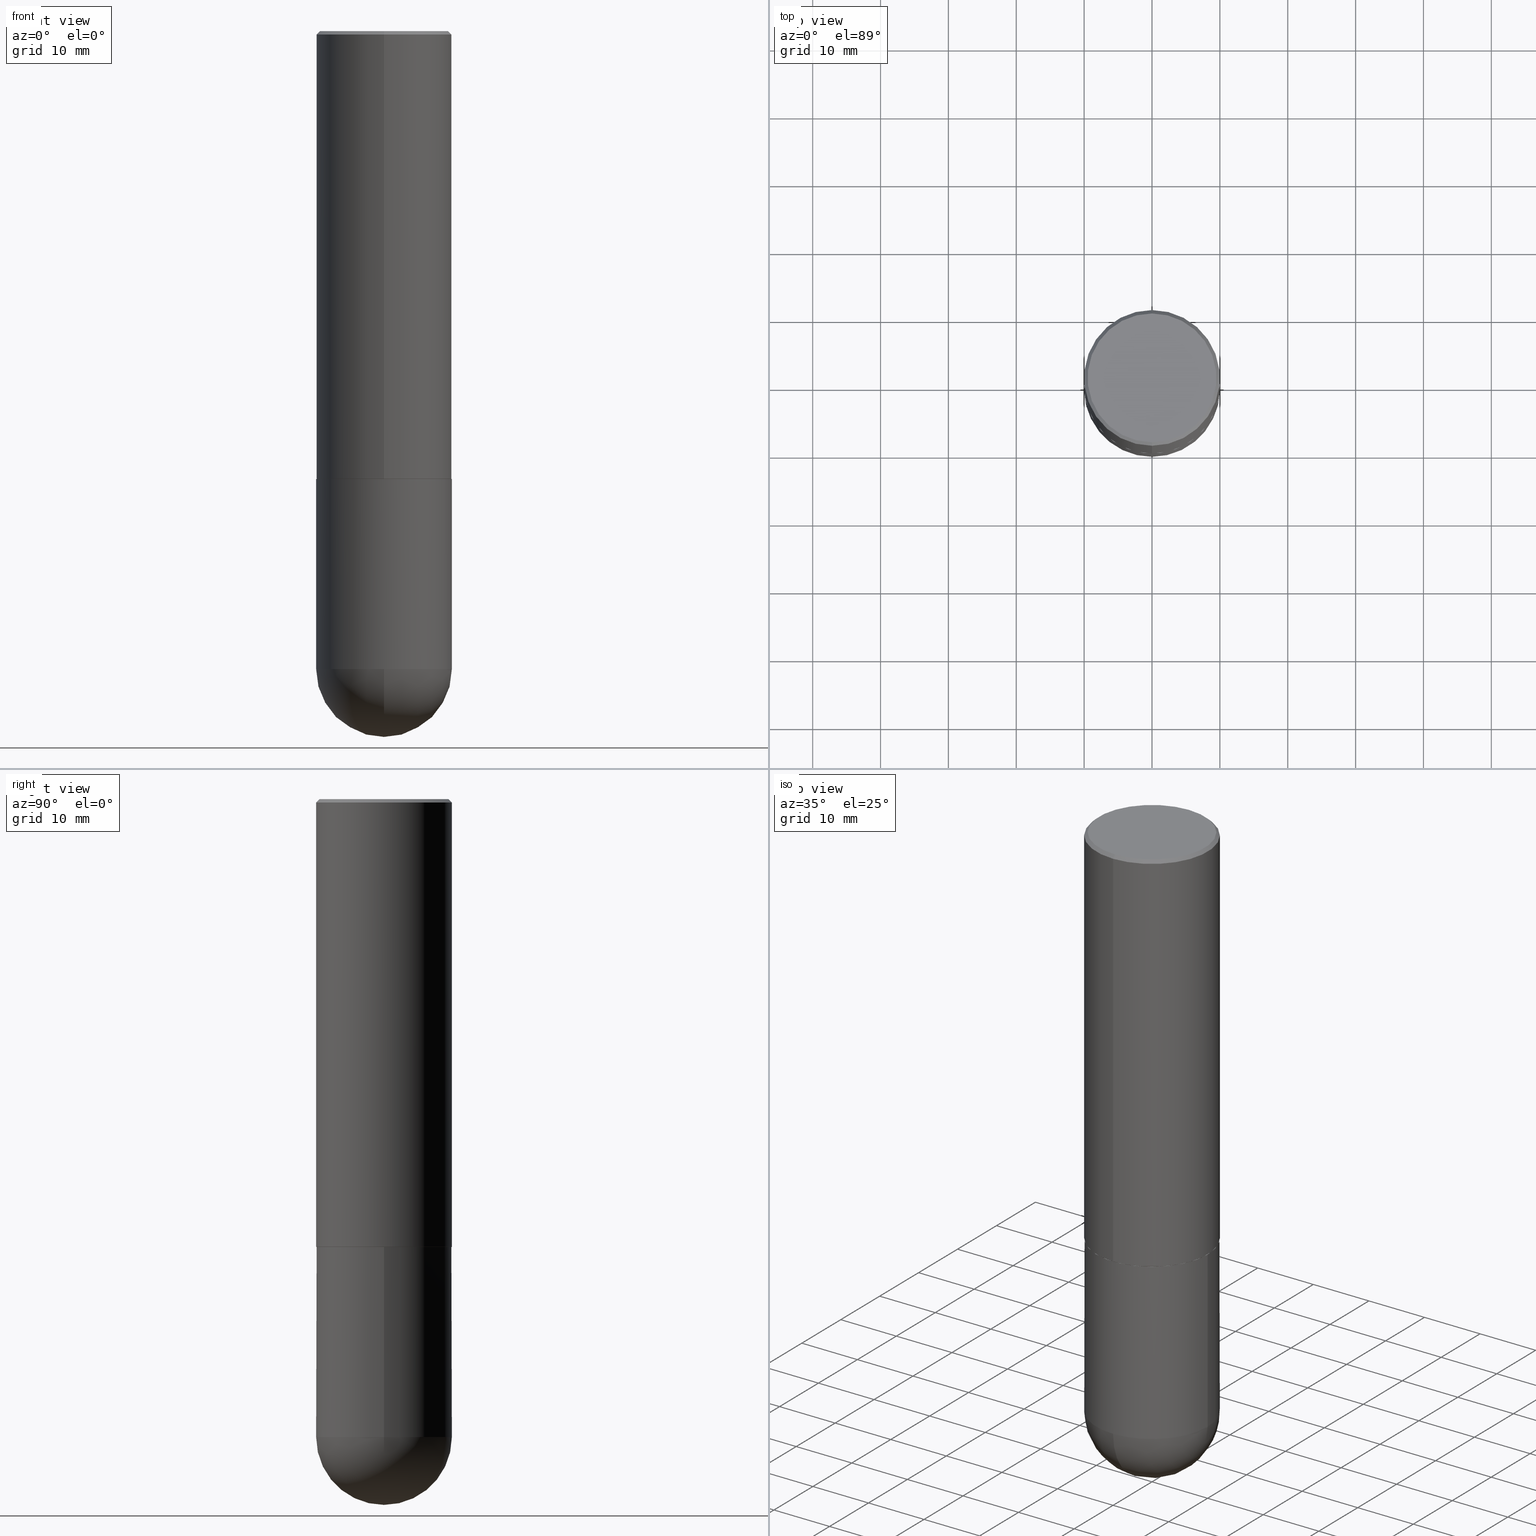
[diagram: canonical four-view strip — front | top / right | iso, engineering-drawing reading convention]
A machine part, canonical four-view strip (front | top / right | iso — engineering-drawing reading convention). The complete STEP part file that produces these views, byte-faithful:
ISO-10303-21;
HEADER;
FILE_DESCRIPTION (( 'STEP AP203' ),
    '1' );
FILE_NAME ('46350.STEP',
    '2024-04-10T11:50:10',
    ( '' ),
    ( '' ),
    'SwSTEP 2.0',
    'SolidWorks 2023',
    '' );
FILE_SCHEMA (( 'CONFIG_CONTROL_DESIGN' ));
ENDSEC;

DATA;
#1 = FACE_OUTER_BOUND ( 'NONE', #329, .T. ) ;
#2 = CC_DESIGN_APPROVAL ( #303, ( #387 ) ) ;
#3 = ORIENTED_EDGE ( 'NONE', *, *, #97, .T. ) ;
#4 = VERTEX_POINT ( 'NONE', #135 ) ;
#5 = VECTOR ( 'NONE', #363, 39.37007874015748143 ) ;
#6 = LOCAL_TIME ( 7, 50, 10.00000000000000000, #369 ) ;
#7 = ORIENTED_EDGE ( 'NONE', *, *, #140, .T. ) ;
#8 = CIRCLE ( 'NONE', #309, 0.3937000000000002720 ) ;
#9 = ORIENTED_EDGE ( 'NONE', *, *, #88, .F. ) ;
#10 = CC_DESIGN_PERSON_AND_ORGANIZATION_ASSIGNMENT ( #379, #401, ( #387 ) ) ;
#11 = EDGE_CURVE ( 'NONE', #100, #323, #43, .T. ) ;
#12 = ORIENTED_EDGE ( 'NONE', *, *, #84, .F. ) ;
#13 = ADVANCED_FACE ( 'NONE', ( #235 ), #195, .T. ) ;
#14 = ORIENTED_EDGE ( 'NONE', *, *, #219, .F. ) ;
#15 = FACE_OUTER_BOUND ( 'NONE', #408, .T. ) ;
#16 = ADVANCED_BREP_SHAPE_REPRESENTATION ( '46350', ( #374, #238, #103 ), #249 ) ;
#17 = CARTESIAN_POINT ( 'NONE',  ( 6.349752936603663586E-29, -9.071792033989200442E-15, -2.597400000000000375 ) ) ;
#18 = CARTESIAN_POINT ( 'NONE',  ( 6.349752936603663586E-29, -9.071792033989200442E-15, -2.597400000000000375 ) ) ;
#19 = SECURITY_CLASSIFICATION_LEVEL ( 'unclassified' ) ;
#20 = AXIS2_PLACEMENT_3D ( 'NONE', #345, #279, #116 ) ;
#21 = FACE_OUTER_BOUND ( 'NONE', #78, .T. ) ;
#22 = CALENDAR_DATE ( 2024, 10, 4 ) ;
#23 = DIRECTION ( 'NONE',  ( 6.982962677686265133E-15, 1.000000000000000000, 0.000000000000000000 ) ) ;
#24 = EDGE_CURVE ( 'NONE', #331, #100, #137, .T. ) ;
#25 = CARTESIAN_POINT ( 'NONE',  ( -2.797406750687426828E-15, -0.3937000000000133171, -3.700799999999998313 ) ) ;
#26 = APPROVAL_DATE_TIME ( #318, #233 ) ;
#27 = DIRECTION ( 'NONE',  ( 1.000000000000000000, -6.982962677686267499E-15, 0.000000000000000000 ) ) ;
#28 = APPLICATION_CONTEXT ( 'configuration controlled 3d designs of mechanical parts and assemblies' ) ;
#29 = VERTEX_POINT ( 'NONE', #403 ) ;
#30 = PERSON_AND_ORGANIZATION ( #257, #289 ) ;
#31 = CONICAL_SURFACE ( 'NONE', #273, 0.3937000000000000499, 0.7853981633974463916 ) ;
#32 = CARTESIAN_POINT ( 'NONE',  ( -2.749192406205021291E-15, -0.3937000000000093758, -2.597399999999999043 ) ) ;
#33 = SECURITY_CLASSIFICATION ( '', '', #19 ) ;
#34 = ORIENTED_EDGE ( 'NONE', *, *, #284, .F. ) ;
#35 = APPROVAL_STATUS ( 'not_yet_approved' ) ;
#36 = DIRECTION ( 'NONE',  ( -2.445468806185136597E-29, 3.491481338843145583E-15, 1.000000000000000000 ) ) ;
#37 = CYLINDRICAL_SURFACE ( 'NONE', #364, 0.3937000000000001054 ) ;
#38 = DIRECTION ( 'NONE',  ( 6.982962677686265922E-15, 1.000000000000000000, -4.163344669033671690E-15 ) ) ;
#39 = VERTEX_POINT ( 'NONE', #333 ) ;
#40 = AXIS2_PLACEMENT_3D ( 'NONE', #64, #36, #283 ) ;
#41 = LOCAL_TIME ( 7, 50, 10.00000000000000000, #184 ) ;
#42 = EDGE_CURVE ( 'NONE', #297, #44, #118, .T. ) ;
#43 = LINE ( 'NONE', #167, #229 ) ;
#44 = VERTEX_POINT ( 'NONE', #332 ) ;
#45 = AXIS2_PLACEMENT_3D ( 'NONE', #304, #209, #170 ) ;
#46 = EDGE_LOOP ( 'NONE', ( #131, #119, #291, #164 ) ) ;
#47 = ORIENTED_EDGE ( 'NONE', *, *, #88, .T. ) ;
#48 = EDGE_CURVE ( 'NONE', #225, #232, #393, .T. ) ;
#49 = ORIENTED_EDGE ( 'NONE', *, *, #114, .T. ) ;
#50 = DIRECTION ( 'NONE',  ( -2.444657325249735282E-29, 3.492643425729266472E-15, 1.000000000000000000 ) ) ;
#51 = CARTESIAN_POINT ( 'NONE',  ( -0.3937000000000001054, 2.797406750687515181E-15, -1.936584745033357016E-29 ) ) ;
#52 = CARTESIAN_POINT ( 'NONE',  ( 6.352197593928913736E-29, -9.075284677414927433E-15, -2.598400000000000265 ) ) ;
#53 =( NAMED_UNIT ( * ) SI_UNIT ( $, .STERADIAN. ) SOLID_ANGLE_UNIT ( ) );
#54 = CARTESIAN_POINT ( 'NONE',  ( 8.719071180016067419E-29, -1.339545650693076387E-14, -3.700800000000000090 ) ) ;
#55 = PERSON_AND_ORGANIZATION ( #257, #289 ) ;
#56 = CIRCLE ( 'NONE', #201, 0.3937000000000000499 ) ;
#57 = DIRECTION ( 'NONE',  ( -6.982962677686265922E-15, -1.000000000000000000, 4.163344669033672479E-15 ) ) ;
#58 = CARTESIAN_POINT ( 'NONE',  ( 4.889314650499493511E-31, -6.985286851458564351E-17, -0.02000000000000009062 ) ) ;
#59 = MECHANICAL_CONTEXT ( 'NONE', #381, 'mechanical' ) ;
#60 = DIRECTION ( 'NONE',  ( 1.000000000000000000, -6.982962677686266711E-15, 0.000000000000000000 ) ) ;
#61 = DIRECTION ( 'NONE',  ( -2.444657325249735563E-29, 3.492643425729266472E-15, 1.000000000000000000 ) ) ;
#62 = CC_DESIGN_PERSON_AND_ORGANIZATION_ASSIGNMENT ( #122, #245, ( #387 ) ) ;
#63 = APPLICATION_PROTOCOL_DEFINITION ( 'international standard', 'config_control_design', 1994, #381 ) ;
#64 = CARTESIAN_POINT ( 'NONE',  ( 9.050190957929953666E-29, -1.292127413879071357E-14, -3.700800000000000090 ) ) ;
#65 = CIRCLE ( 'NONE', #87, 0.3937000000000003830 ) ;
#66 = DIRECTION ( 'NONE',  ( -2.445468806185136597E-29, 3.491481338843145583E-15, 1.000000000000000000 ) ) ;
#67 = EDGE_CURVE ( 'NONE', #357, #356, #272, .T. ) ;
#68 = CARTESIAN_POINT ( 'NONE',  ( 2.609533152651355437E-15, 0.3736999999999996991, -1.142780237636538570E-15 ) ) ;
#69 =( CONVERSION_BASED_UNIT ( 'INCH', #162 ) LENGTH_UNIT ( ) NAMED_UNIT ( #306 ) );
#70 = ORIENTED_EDGE ( 'NONE', *, *, #11, .F. ) ;
#71 = ORIENTED_EDGE ( 'NONE', *, *, #351, .T. ) ;
#72 = ORIENTED_EDGE ( 'NONE', *, *, #327, .F. ) ;
#73 = ADVANCED_FACE ( 'NONE', ( #21 ), #85, .T. ) ;
#74 = CONICAL_SURFACE ( 'NONE', #407, 0.3926999999999999935, 0.7853981633976873100 ) ;
#75 = LOCAL_TIME ( 7, 50, 10.00000000000000000, #90 ) ;
#76 = ORIENTED_EDGE ( 'NONE', *, *, #399, .T. ) ;
#77 = EDGE_CURVE ( 'NONE', #29, #350, #242, .T. ) ;
#78 = EDGE_LOOP ( 'NONE', ( #377, #388, #155, #12 ) ) ;
#79 = FACE_OUTER_BOUND ( 'NONE', #133, .T. ) ;
#80 = DIRECTION ( 'NONE',  ( -6.982962677686265133E-15, -1.000000000000000000, 4.173946514383900962E-15 ) ) ;
#81 = DIRECTION ( 'NONE',  ( -2.444657325249735563E-29, 3.492643425729266472E-15, 1.000000000000000000 ) ) ;
#82 = CARTESIAN_POINT ( 'NONE',  ( -0.3937000000000001054, -8.199362874132859889E-15, -3.700800000000000090 ) ) ;
#83 = DIRECTION ( 'NONE',  ( -2.444657325249735563E-29, 3.492643425729266472E-15, 1.000000000000000000 ) ) ;
#84 = EDGE_CURVE ( 'NONE', #356, #39, #259, .T. ) ;
#85 = CYLINDRICAL_SURFACE ( 'NONE', #187, 0.3937000000000001609 ) ;
#86 = APPROVAL_STATUS ( 'not_yet_approved' ) ;
#87 = AXIS2_PLACEMENT_3D ( 'NONE', #218, #181, #23 ) ;
#88 = EDGE_CURVE ( 'NONE', #323, #357, #8, .T. ) ;
#89 = DIRECTION ( 'NONE',  ( 1.000000000000000000, -6.982962677686266711E-15, 4.876176775795935793E-29 ) ) ;
#90 = COORDINATED_UNIVERSAL_TIME_OFFSET ( 5, 0, .BEHIND. ) ;
#91 = CARTESIAN_POINT ( 'NONE',  ( 2.749192406205146325E-15, 0.3936999999999909461, -2.598400000000002041 ) ) ;
#92 = ORIENTED_EDGE ( 'NONE', *, *, #77, .F. ) ;
#93 = DATE_AND_TIME ( #375, #153 ) ;
#94 = AXIS2_PLACEMENT_3D ( 'NONE', #179, #247, #60 ) ;
#95 = CLOSED_SHELL ( 'NONE', ( #129, #226, #412, #263, #395 ) ) ;
#96 = VECTOR ( 'NONE', #110, 39.37007874015748143 ) ;
#97 = EDGE_CURVE ( 'NONE', #44, #297, #185, .T. ) ;
#98 = ORIENTED_EDGE ( 'NONE', *, *, #140, .F. ) ;
#99 = EDGE_LOOP ( 'NONE', ( #290, #183, #9, #70 ) ) ;
#100 = VERTEX_POINT ( 'NONE', #246 ) ;
#101 = ADVANCED_FACE ( 'NONE', ( #302 ), #74, .T. ) ;
#102 = ORIENTED_EDGE ( 'NONE', *, *, #351, .F. ) ;
#103 = AXIS2_PLACEMENT_3D ( 'NONE', #252, #346, #210 ) ;
#104 = ORIENTED_EDGE ( 'NONE', *, *, #42, .T. ) ;
#105 = DIRECTION ( 'NONE',  ( -2.444657325249735563E-29, 3.492643425729266472E-15, 1.000000000000000000 ) ) ;
#106 = PRODUCT_DEFINITION_SHAPE ( 'NONE', 'NONE',  #196 ) ;
#107 = DIRECTION ( 'NONE',  ( 1.000000000000000000, -6.982962677686266711E-15, 4.876176775795935793E-29 ) ) ;
#108 = CARTESIAN_POINT ( 'NONE',  ( -2.749192406205084005E-15, -0.3937000000000001609, 1.375053716709612699E-15 ) ) ;
#109 = CIRCLE ( 'NONE', #398, 0.3937000000000001054 ) ;
#110 = DIRECTION ( 'NONE',  ( -2.444657325249735282E-29, 3.492643425729266472E-15, 1.000000000000000000 ) ) ;
#111 = PERSON_AND_ORGANIZATION_ROLE ( 'creator' ) ;
#112 = DIRECTION ( 'NONE',  ( 2.438088387897960049E-29, -3.491481338843145188E-15, -1.000000000000000000 ) ) ;
#113 = CARTESIAN_POINT ( 'NONE',  ( 2.797406750687515181E-15, 0.3937000000000001609, -1.375053716709612699E-15 ) ) ;
#114 = EDGE_CURVE ( 'NONE', #350, #232, #373, .T. ) ;
#115 = PERSON_AND_ORGANIZATION_ROLE ( 'design_owner' ) ;
#116 = DIRECTION ( 'NONE',  ( -6.982962677686265922E-15, -1.000000000000000000, 3.492643425729266472E-15 ) ) ;
#117 = CC_DESIGN_PERSON_AND_ORGANIZATION_ASSIGNMENT ( #173, #115, ( #397 ) ) ;
#118 = CIRCLE ( 'NONE', #353, 0.3736999999999996991 ) ;
#119 = ORIENTED_EDGE ( 'NONE', *, *, #24, .T. ) ;
#120 = PERSON_AND_ORGANIZATION ( #257, #289 ) ;
#121 = DIRECTION ( 'NONE',  ( -4.851104656540954020E-15, -0.7071067811865485719, -0.7071067811865464625 ) ) ;
#122 = PERSON_AND_ORGANIZATION ( #257, #289 ) ;
#123 = SPHERICAL_SURFACE ( 'NONE', #220, 0.3937000000000003830 ) ;
#124 = VERTEX_POINT ( 'NONE', #207 ) ;
#125 = CIRCLE ( 'NONE', #358, 0.3937000000000003830 ) ;
#126 =( LENGTH_UNIT ( ) NAMED_UNIT ( * ) SI_UNIT ( $, .METRE. ) );
#127 = EDGE_LOOP ( 'NONE', ( #262, #391 ) ) ;
#128 = ORIENTED_EDGE ( 'NONE', *, *, #236, .T. ) ;
#129 = ADVANCED_FACE ( 'NONE', ( #15 ), #141, .T. ) ;
#130 = AXIS2_PLACEMENT_3D ( 'NONE', #277, #66, #320 ) ;
#131 = ORIENTED_EDGE ( 'NONE', *, *, #192, .F. ) ;
#132 = EDGE_CURVE ( 'NONE', #124, #166, #125, .T. ) ;
#133 = EDGE_LOOP ( 'NONE', ( #49, #71 ) ) ;
#134 = CARTESIAN_POINT ( 'NONE',  ( 4.889314650499493511E-31, -6.985286851458564351E-17, -0.02000000000000009062 ) ) ;
#135 = CARTESIAN_POINT ( 'NONE',  ( 2.749192406205173147E-15, 0.3936999999999871158, -3.700800000000001866 ) ) ;
#136 = CARTESIAN_POINT ( 'NONE',  ( 6.352197593928913736E-29, -9.075284677414927433E-15, -2.598400000000000265 ) ) ;
#137 = CIRCLE ( 'NONE', #250, 0.3926999999999999935 ) ;
#138 = CARTESIAN_POINT ( 'NONE',  ( 0.000000000000000000, 0.000000000000000000, 0.000000000000000000 ) ) ;
#139 = CARTESIAN_POINT ( 'NONE',  ( 0.000000000000000000, 0.000000000000000000, 0.000000000000000000 ) ) ;
#140 = EDGE_CURVE ( 'NONE', #297, #356, #394, .T. ) ;
#141 = CYLINDRICAL_SURFACE ( 'NONE', #382, 0.3937000000000001054 ) ;
#142 = AXIS2_PLACEMENT_3D ( 'NONE', #68, #214, #157 ) ;
#143 = AXIS2_PLACEMENT_3D ( 'NONE', #359, #168, #203 ) ;
#144 = AXIS2_PLACEMENT_3D ( 'NONE', #334, #83, #145 ) ;
#145 = DIRECTION ( 'NONE',  ( -6.982962677686265922E-15, -1.000000000000000000, 3.492643425729266867E-15 ) ) ;
#146 = DATE_AND_TIME ( #22, #6 ) ;
#147 = FACE_OUTER_BOUND ( 'NONE', #231, .T. ) ;
#148 = PERSON_AND_ORGANIZATION_ROLE ( 'classification_officer' ) ;
#149 = SPHERICAL_SURFACE ( 'NONE', #383, 0.3937000000000003830 ) ;
#150 = DIRECTION ( 'NONE',  ( -2.445468806185136597E-29, 3.491481338843145583E-15, 1.000000000000000000 ) ) ;
#151 = EDGE_LOOP ( 'NONE', ( #256, #299, #202, #352 ) ) ;
#152 = APPROVAL_DATE_TIME ( #410, #303 ) ;
#153 = LOCAL_TIME ( 7, 50, 10.00000000000000000, #307 ) ;
#154 = CARTESIAN_POINT ( 'NONE',  ( -2.700978061722651252E-15, -0.3937000000000001054, -0.01999999999999871672 ) ) ;
#155 = ORIENTED_EDGE ( 'NONE', *, *, #219, .T. ) ;
#156 = APPROVAL_STATUS ( 'not_yet_approved' ) ;
#157 = DIRECTION ( 'NONE',  ( 6.982962677686265922E-15, 1.000000000000000000, -3.492643425729266472E-15 ) ) ;
#158 = ORIENTED_EDGE ( 'NONE', *, *, #327, .T. ) ;
#159 = PLANE ( 'NONE',  #20 ) ;
#160 = ORIENTED_EDGE ( 'NONE', *, *, #132, .T. ) ;
#161 = APPROVAL_PERSON_ORGANIZATION ( #217, #233, #338 ) ;
#162 = LENGTH_MEASURE_WITH_UNIT ( LENGTH_MEASURE( 0.02539999999999999897 ), #126 );
#163 = ORIENTED_EDGE ( 'NONE', *, *, #48, .T. ) ;
#164 = ORIENTED_EDGE ( 'NONE', *, *, #208, .F. ) ;
#165 = AXIS2_PLACEMENT_3D ( 'NONE', #288, #150, #27 ) ;
#166 = VERTEX_POINT ( 'NONE', #25 ) ;
#167 = CARTESIAN_POINT ( 'NONE',  ( -2.742209443527332910E-15, -0.3927000000000090973, -2.598399999999998489 ) ) ;
#168 = DIRECTION ( 'NONE',  ( -2.444657325249735563E-29, 3.492643425729266472E-15, 1.000000000000000000 ) ) ;
#169 = VECTOR ( 'NONE', #172, 39.37007874015748143 ) ;
#170 = DIRECTION ( 'NONE',  ( 1.000000000000000000, -6.982962677686267499E-15, 0.000000000000000000 ) ) ;
#171 = DIRECTION ( 'NONE',  ( -6.982962677686265922E-15, -1.000000000000000000, 3.492643425729266472E-15 ) ) ;
#172 = DIRECTION ( 'NONE',  ( 5.024295867789263036E-15, 0.7071067811867189912, 0.7071067811863760433 ) ) ;
#173 = PERSON_AND_ORGANIZATION ( #257, #289 ) ;
#174 = EDGE_CURVE ( 'NONE', #100, #331, #265, .T. ) ;
#175 = FACE_OUTER_BOUND ( 'NONE', #386, .T. ) ;
#176 = CIRCLE ( 'NONE', #94, 0.3937000000000001054 ) ;
#177 = LOCAL_TIME ( 7, 50, 10.00000000000000000, #178 ) ;
#178 = COORDINATED_UNIVERSAL_TIME_OFFSET ( 5, 0, .BEHIND. ) ;
#179 = CARTESIAN_POINT ( 'NONE',  ( 9.050190957929953666E-29, -1.292127413879071357E-14, -3.700800000000000090 ) ) ;
#180 = DIRECTION ( 'NONE',  ( -6.982962677686265133E-15, -1.000000000000000000, 4.173946514383900962E-15 ) ) ;
#181 = DIRECTION ( 'NONE',  ( 1.000000000000000000, -6.982962677686265922E-15, 4.883557194083112340E-29 ) ) ;
#182 = DIRECTION ( 'NONE',  ( 2.444657325249735563E-29, -3.492643425729266472E-15, -1.000000000000000000 ) ) ;
#183 = ORIENTED_EDGE ( 'NONE', *, *, #192, .T. ) ;
#184 = COORDINATED_UNIVERSAL_TIME_OFFSET ( 5, 0, .BEHIND. ) ;
#185 = CIRCLE ( 'NONE', #144, 0.3736999999999996991 ) ;
#186 = CARTESIAN_POINT ( 'NONE',  ( 0.000000000000000000, 0.000000000000000000, 0.000000000000000000 ) ) ;
#187 = AXIS2_PLACEMENT_3D ( 'NONE', #139, #105, #171 ) ;
#188 = CARTESIAN_POINT ( 'NONE',  ( 2.679362779428219524E-15, 0.3736999999999996991, -9.803596270780512067E-16 ) ) ;
#189 = FACE_OUTER_BOUND ( 'NONE', #127, .T. ) ;
#190 = ORIENTED_EDGE ( 'NONE', *, *, #284, .T. ) ;
#191 = DIRECTION ( 'NONE',  ( -6.982962677686265133E-15, -1.000000000000000000, 3.491137977679279424E-15 ) ) ;
#192 = EDGE_CURVE ( 'NONE', #331, #357, #341, .T. ) ;
#193 =( NAMED_UNIT ( * ) PLANE_ANGLE_UNIT ( ) SI_UNIT ( $, .RADIAN. ) );
#194 = CC_DESIGN_APPROVAL ( #261, ( #33 ) ) ;
#195 = CONICAL_SURFACE ( 'NONE', #143, 0.3926999999999999935, 0.7853981633976873100 ) ;
#196 = PRODUCT_DEFINITION ( 'UNKNOWN', '', #387, #292 ) ;
#197 = ORIENTED_EDGE ( 'NONE', *, *, #268, .F. ) ;
#198 = EDGE_LOOP ( 'NONE', ( #47, #230, #197, #14 ) ) ;
#199 = ORIENTED_EDGE ( 'NONE', *, *, #339, .F. ) ;
#200 = VECTOR ( 'NONE', #204, 39.37007874015748143 ) ;
#201 = AXIS2_PLACEMENT_3D ( 'NONE', #344, #370, #191 ) ;
#202 = ORIENTED_EDGE ( 'NONE', *, *, #399, .F. ) ;
#203 = DIRECTION ( 'NONE',  ( -6.982962677686265133E-15, -1.000000000000000000, 4.173946514383900962E-15 ) ) ;
#204 = DIRECTION ( 'NONE',  ( -2.445468806185136877E-29, 3.491481338843145188E-15, 1.000000000000000000 ) ) ;
#205 = APPROVAL_PERSON_ORGANIZATION ( #30, #261, #311 ) ;
#206 = CARTESIAN_POINT ( 'NONE',  ( 2.790301323329976493E-15, 0.3926999999999909452, -2.598400000000002041 ) ) ;
#207 = CARTESIAN_POINT ( 'NONE',  ( 9.698686197413653023E-29, -1.474594553779209640E-14, -4.094500000000000028 ) ) ;
#208 = EDGE_CURVE ( 'NONE', #357, #323, #240, .T. ) ;
#209 = DIRECTION ( 'NONE',  ( -2.445468806185136597E-29, 3.491481338843145583E-15, 1.000000000000000000 ) ) ;
#210 = DIRECTION ( 'NONE',  ( 1.000000000000000000, 0.000000000000000000, 0.000000000000000000 ) ) ;
#211 = CARTESIAN_POINT ( 'NONE',  ( 2.749192406205083217E-15, 0.3936999999999999389, -0.02000000000000146452 ) ) ;
#212 = AXIS2_PLACEMENT_3D ( 'NONE', #248, #61, #317 ) ;
#213 = SHAPE_DEFINITION_REPRESENTATION ( #106, #16 ) ;
#214 = DIRECTION ( 'NONE',  ( 2.444657325249735282E-29, -3.492643425729266472E-15, -1.000000000000000000 ) ) ;
#215 = DIRECTION ( 'NONE',  ( -1.000000000000000000, 6.982962677686265922E-15, -4.876176775795935793E-29 ) ) ;
#216 = EDGE_LOOP ( 'NONE', ( #72, #390, #7, #315 ) ) ;
#217 = PERSON_AND_ORGANIZATION ( #257, #289 ) ;
#218 = CARTESIAN_POINT ( 'NONE',  ( 8.719071180016067419E-29, -1.339545650693076387E-14, -3.700800000000000090 ) ) ;
#219 = EDGE_CURVE ( 'NONE', #323, #39, #396, .T. ) ;
#220 = AXIS2_PLACEMENT_3D ( 'NONE', #406, #349, #38 ) ;
#221 = DATE_TIME_ROLE ( 'creation_date' ) ;
#222 = FACE_OUTER_BOUND ( 'NONE', #325, .T. ) ;
#223 = CARTESIAN_POINT ( 'NONE',  ( 9.050190957929953666E-29, -1.292127413879071357E-14, -3.700800000000000090 ) ) ;
#224 = AXIS2_PLACEMENT_3D ( 'NONE', #58, #376, #330 ) ;
#225 = VERTEX_POINT ( 'NONE', #82 ) ;
#226 = ADVANCED_FACE ( 'NONE', ( #175 ), #149, .T. ) ;
#227 = DIRECTION ( 'NONE',  ( -6.982962677686265133E-15, -1.000000000000000000, 4.173946514383900962E-15 ) ) ;
#228 = UNCERTAINTY_MEASURE_WITH_UNIT (LENGTH_MEASURE( 1.000000000000000082E-05 ), #69, 'distance_accuracy_value', 'NONE');
#229 = VECTOR ( 'NONE', #264, 39.37007874015748143 ) ;
#230 = ORIENTED_EDGE ( 'NONE', *, *, #67, .T. ) ;
#231 = EDGE_LOOP ( 'NONE', ( #104, #3 ) ) ;
#232 = VERTEX_POINT ( 'NONE', #405 ) ;
#233 = APPROVAL ( #35, 'UNSPECIFIED' ) ;
#234 = CONICAL_SURFACE ( 'NONE', #224, 0.3937000000000000499, 0.7853981633974463916 ) ;
#235 = FACE_OUTER_BOUND ( 'NONE', #46, .T. ) ;
#236 = EDGE_CURVE ( 'NONE', #166, #29, #176, .T. ) ;
#237 = DIRECTION ( 'NONE',  ( -6.982962677686265922E-15, -1.000000000000000000, 4.163344669033672479E-15 ) ) ;
#238 = MANIFOLD_SOLID_BREP ( 'Body-Move/Copy2[2]', #266 ) ;
#239 = CARTESIAN_POINT ( 'NONE',  ( 0.3937000000000001054, -2.749192406205084005E-15, 1.919750796630860452E-29 ) ) ;
#240 = CIRCLE ( 'NONE', #348, 0.3937000000000002720 ) ;
#241 = CC_DESIGN_APPROVAL ( #233, ( #196 ) ) ;
#242 = LINE ( 'NONE', #239, #200 ) ;
#243 = VECTOR ( 'NONE', #50, 39.37007874015748143 ) ;
#244 = DIRECTION ( 'NONE',  ( -2.445468806185136877E-29, 3.491481338843145188E-15, 1.000000000000000000 ) ) ;
#245 = PERSON_AND_ORGANIZATION_ROLE ( 'creator' ) ;
#246 = CARTESIAN_POINT ( 'NONE',  ( -2.742209443527332910E-15, -0.3927000000000090973, -2.598399999999998489 ) ) ;
#247 = DIRECTION ( 'NONE',  ( -2.445468806185136597E-29, 3.491481338843145583E-15, 1.000000000000000000 ) ) ;
#248 = CARTESIAN_POINT ( 'NONE',  ( 0.000000000000000000, 0.000000000000000000, 0.000000000000000000 ) ) ;
#249 =( GEOMETRIC_REPRESENTATION_CONTEXT ( 3 ) GLOBAL_UNCERTAINTY_ASSIGNED_CONTEXT ( ( #228 ) ) GLOBAL_UNIT_ASSIGNED_CONTEXT ( ( #69, #193, #53 ) ) REPRESENTATION_CONTEXT ( 'NONE', 'WORKASPACE' ) );
#250 = AXIS2_PLACEMENT_3D ( 'NONE', #136, #300, #227 ) ;
#251 = PERSON_AND_ORGANIZATION ( #257, #289 ) ;
#252 = CARTESIAN_POINT ( 'NONE',  ( 0.000000000000000000, 0.000000000000000000, 0.000000000000000000 ) ) ;
#253 = ADVANCED_FACE ( 'NONE', ( #402 ), #234, .T. ) ;
#254 = AXIS2_PLACEMENT_3D ( 'NONE', #366, #367, #362 ) ;
#255 = PRODUCT_RELATED_PRODUCT_CATEGORY ( 'detail', '', ( #397 ) ) ;
#256 = ORIENTED_EDGE ( 'NONE', *, *, #132, .F. ) ;
#257 = PERSON ( 'UNSPECIFIED', 'UNSPECIFIED', 'UNSPECIFIED', ('UNSPECIFIED'), ('UNSPECIFIED'), ('UNSPECIFIED') ) ;
#258 = VECTOR ( 'NONE', #121, 39.37007874015748143 ) ;
#259 = CIRCLE ( 'NONE', #254, 0.3937000000000000499 ) ;
#260 = ORIENTED_EDGE ( 'NONE', *, *, #368, .T. ) ;
#261 = APPROVAL ( #86, 'UNSPECIFIED' ) ;
#262 = ORIENTED_EDGE ( 'NONE', *, *, #174, .F. ) ;
#263 = ADVANCED_FACE ( 'NONE', ( #79 ), #336, .F. ) ;
#264 = DIRECTION ( 'NONE',  ( -4.937700262165728178E-15, -0.7071067811867141062, 0.7071067811863809283 ) ) ;
#265 = CIRCLE ( 'NONE', #301, 0.3926999999999999935 ) ;
#266 = CLOSED_SHELL ( 'NONE', ( #101, #298, #295, #253, #73, #13, #308, #385 ) ) ;
#267 = CARTESIAN_POINT ( 'NONE',  ( -7.941254707466810248E-45, 1.134554555340068296E-30, 3.248412211169746281E-16 ) ) ;
#268 = EDGE_CURVE ( 'NONE', #39, #356, #56, .T. ) ;
#269 = DIRECTION ( 'NONE',  ( -2.444657325249735563E-29, 3.492643425729266472E-15, 1.000000000000000000 ) ) ;
#270 = DIRECTION ( 'NONE',  ( -2.444657325249735563E-29, 3.492643425729266472E-15, 1.000000000000000000 ) ) ;
#271 = CIRCLE ( 'NONE', #40, 0.3937000000000001054 ) ;
#272 = LINE ( 'NONE', #113, #243 ) ;
#273 = AXIS2_PLACEMENT_3D ( 'NONE', #134, #182, #314 ) ;
#274 = APPROVAL_ROLE ( '' ) ;
#275 = DIRECTION ( 'NONE',  ( -2.444657325249735563E-29, 3.492643425729266472E-15, 1.000000000000000000 ) ) ;
#276 = CALENDAR_DATE ( 2024, 10, 4 ) ;
#277 = CARTESIAN_POINT ( 'NONE',  ( 9.050190957929953666E-29, -1.292127413879071357E-14, -3.700800000000000090 ) ) ;
#278 = CARTESIAN_POINT ( 'NONE',  ( 8.719071180016067419E-29, -1.339545650693076387E-14, -3.700800000000000090 ) ) ;
#279 = DIRECTION ( 'NONE',  ( -2.444657325249735282E-29, 3.492643425729266472E-15, 1.000000000000000000 ) ) ;
#280 = APPLICATION_PROTOCOL_DEFINITION ( 'international standard', 'config_control_design', 1994, #28 ) ;
#281 = LINE ( 'NONE', #154, #258 ) ;
#282 = CALENDAR_DATE ( 2024, 10, 4 ) ;
#283 = DIRECTION ( 'NONE',  ( 1.000000000000000000, -6.982962677686266711E-15, 0.000000000000000000 ) ) ;
#284 = EDGE_CURVE ( 'NONE', #4, #225, #271, .T. ) ;
#285 = DIRECTION ( 'NONE',  ( -2.445468806185136597E-29, 3.491481338843145583E-15, 1.000000000000000000 ) ) ;
#286 = FACE_OUTER_BOUND ( 'NONE', #198, .T. ) ;
#287 = ORIENTED_EDGE ( 'NONE', *, *, #48, .F. ) ;
#288 = CARTESIAN_POINT ( 'NONE',  ( 6.354306145991459756E-29, -9.072265110850031044E-15, -2.598400000000000265 ) ) ;
#289 = ORGANIZATION ( 'UNSPECIFIED', 'UNSPECIFIED', '' ) ;
#290 = ORIENTED_EDGE ( 'NONE', *, *, #174, .T. ) ;
#291 = ORIENTED_EDGE ( 'NONE', *, *, #11, .T. ) ;
#292 = DESIGN_CONTEXT ( 'detailed design', #28, 'design' ) ;
#293 = ORIENTED_EDGE ( 'NONE', *, *, #114, .F. ) ;
#294 = ORIENTED_EDGE ( 'NONE', *, *, #77, .T. ) ;
#295 = ADVANCED_FACE ( 'NONE', ( #222 ), #31, .T. ) ;
#296 = VECTOR ( 'NONE', #244, 39.37007874015748143 ) ;
#297 = VERTEX_POINT ( 'NONE', #188 ) ;
#298 = ADVANCED_FACE ( 'NONE', ( #286 ), #312, .T. ) ;
#299 = ORIENTED_EDGE ( 'NONE', *, *, #339, .T. ) ;
#300 = DIRECTION ( 'NONE',  ( -2.444657325249735563E-29, 3.492643425729266472E-15, 1.000000000000000000 ) ) ;
#301 = AXIS2_PLACEMENT_3D ( 'NONE', #52, #81, #180 ) ;
#302 = FACE_OUTER_BOUND ( 'NONE', #99, .T. ) ;
#303 = APPROVAL ( #156, 'UNSPECIFIED' ) ;
#304 = CARTESIAN_POINT ( 'NONE',  ( 6.354306145991459756E-29, -9.072265110850031044E-15, -2.598400000000000265 ) ) ;
#305 = DIRECTION ( 'NONE',  ( -2.444657325249735563E-29, 3.492643425729266472E-15, 1.000000000000000000 ) ) ;
#306 = DIMENSIONAL_EXPONENTS ( 1.000000000000000000, 0.000000000000000000, 0.000000000000000000, 0.000000000000000000, 0.000000000000000000, 0.000000000000000000, 0.000000000000000000 ) ;
#307 = COORDINATED_UNIVERSAL_TIME_OFFSET ( 5, 0, .BEHIND. ) ;
#308 = ADVANCED_FACE ( 'NONE', ( #189 ), #159, .F. ) ;
#309 = AXIS2_PLACEMENT_3D ( 'NONE', #18, #305, #237 ) ;
#310 = DIRECTION ( 'NONE',  ( -6.982962677686265922E-15, -1.000000000000000000, 3.492643425729266867E-15 ) ) ;
#311 = APPROVAL_ROLE ( '' ) ;
#312 = CYLINDRICAL_SURFACE ( 'NONE', #212, 0.3937000000000001609 ) ;
#313 = CARTESIAN_POINT ( 'NONE',  ( 6.352197593928913736E-29, -9.075284677414927433E-15, -2.598400000000000265 ) ) ;
#314 = DIRECTION ( 'NONE',  ( 6.982962677686265133E-15, 1.000000000000000000, -3.491137977679279424E-15 ) ) ;
#315 = ORIENTED_EDGE ( 'NONE', *, *, #84, .T. ) ;
#316 = DATE_AND_TIME ( #343, #177 ) ;
#317 = DIRECTION ( 'NONE',  ( -6.982962677686265922E-15, -1.000000000000000000, 3.492643425729266472E-15 ) ) ;
#318 = DATE_AND_TIME ( #276, #41 ) ;
#319 = DIRECTION ( 'NONE',  ( -2.445468806185136597E-29, 3.491481338843145583E-15, 1.000000000000000000 ) ) ;
#320 = DIRECTION ( 'NONE',  ( 1.000000000000000000, -6.982962677686266711E-15, 0.000000000000000000 ) ) ;
#321 = CC_DESIGN_DATE_AND_TIME_ASSIGNMENT ( #93, #221, ( #196 ) ) ;
#322 = CIRCLE ( 'NONE', #130, 0.3937000000000001054 ) ;
#323 = VERTEX_POINT ( 'NONE', #32 ) ;
#324 = ORIENTED_EDGE ( 'NONE', *, *, #268, .T. ) ;
#325 = EDGE_LOOP ( 'NONE', ( #355, #158, #324, #98 ) ) ;
#326 = CIRCLE ( 'NONE', #165, 0.3937000000000000499 ) ;
#327 = EDGE_CURVE ( 'NONE', #44, #39, #281, .T. ) ;
#328 = AXIS2_PLACEMENT_3D ( 'NONE', #91, #112, #215 ) ;
#329 = EDGE_LOOP ( 'NONE', ( #287, #260, #128, #294, #102 ) ) ;
#330 = DIRECTION ( 'NONE',  ( 6.982962677686265133E-15, 1.000000000000000000, -3.491137977679279424E-15 ) ) ;
#331 = VERTEX_POINT ( 'NONE', #378 ) ;
#332 = CARTESIAN_POINT ( 'NONE',  ( -2.632373081744935132E-15, -0.3736999999999996991, 1.630042069312000463E-15 ) ) ;
#333 = CARTESIAN_POINT ( 'NONE',  ( -2.700978061722651252E-15, -0.3937000000000001054, -0.01999999999999871672 ) ) ;
#334 = CARTESIAN_POINT ( 'NONE',  ( -7.941254707466810248E-45, 1.134554555340068296E-30, 3.248412211169746281E-16 ) ) ;
#335 = CC_DESIGN_PERSON_AND_ORGANIZATION_ASSIGNMENT ( #120, #111, ( #196 ) ) ;
#336 = PLANE ( 'NONE',  #328 ) ;
#337 = DIRECTION ( 'NONE',  ( -7.105427357600999492E-15, -1.000000000000000000, 0.000000000000000000 ) ) ;
#338 = APPROVAL_ROLE ( '' ) ;
#339 = EDGE_CURVE ( 'NONE', #124, #4, #65, .T. ) ;
#340 = DIRECTION ( 'NONE',  ( 6.982962677686265922E-15, 1.000000000000000000, -4.163344669033671690E-15 ) ) ;
#341 = LINE ( 'NONE', #206, #169 ) ;
#342 = FACE_OUTER_BOUND ( 'NONE', #151, .T. ) ;
#343 = CALENDAR_DATE ( 2024, 10, 4 ) ;
#344 = CARTESIAN_POINT ( 'NONE',  ( 4.889314650499493511E-31, -6.985286851458564351E-17, -0.02000000000000009062 ) ) ;
#345 = CARTESIAN_POINT ( 'NONE',  ( 6.352197593928913736E-29, -9.075284677414927433E-15, -2.598400000000000265 ) ) ;
#346 = DIRECTION ( 'NONE',  ( 0.000000000000000000, 0.000000000000000000, 1.000000000000000000 ) ) ;
#347 = CARTESIAN_POINT ( 'NONE',  ( 2.797406750687547524E-15, 0.3936999999999912236, -2.597400000000002152 ) ) ;
#348 = AXIS2_PLACEMENT_3D ( 'NONE', #17, #270, #57 ) ;
#349 = DIRECTION ( 'NONE',  ( -1.000000000000000000, 6.982962677686265922E-15, -4.883557194083112340E-29 ) ) ;
#350 = VERTEX_POINT ( 'NONE', #372 ) ;
#351 = EDGE_CURVE ( 'NONE', #232, #350, #326, .T. ) ;
#352 = ORIENTED_EDGE ( 'NONE', *, *, #236, .F. ) ;
#353 = AXIS2_PLACEMENT_3D ( 'NONE', #267, #269, #310 ) ;
#354 = CC_DESIGN_PERSON_AND_ORGANIZATION_ASSIGNMENT ( #251, #148, ( #33 ) ) ;
#355 = ORIENTED_EDGE ( 'NONE', *, *, #97, .F. ) ;
#356 = VERTEX_POINT ( 'NONE', #380 ) ;
#357 = VERTEX_POINT ( 'NONE', #347 ) ;
#358 = AXIS2_PLACEMENT_3D ( 'NONE', #54, #400, #337 ) ;
#359 = CARTESIAN_POINT ( 'NONE',  ( 6.352197593928913736E-29, -9.075284677414927433E-15, -2.598400000000000265 ) ) ;
#360 = CC_DESIGN_DATE_AND_TIME_ASSIGNMENT ( #316, #409, ( #33 ) ) ;
#361 = DIRECTION ( 'NONE',  ( -1.000000000000000000, 6.982962677686265922E-15, -4.883557194083112340E-29 ) ) ;
#362 = DIRECTION ( 'NONE',  ( -6.982962677686265133E-15, -1.000000000000000000, 3.491137977679279424E-15 ) ) ;
#363 = DIRECTION ( 'NONE',  ( 4.937700262164537787E-15, 0.7071067811865436870, -0.7071067811865513475 ) ) ;
#364 = AXIS2_PLACEMENT_3D ( 'NONE', #186, #319, #89 ) ;
#365 = APPROVAL_PERSON_ORGANIZATION ( #55, #303, #274 ) ;
#366 = CARTESIAN_POINT ( 'NONE',  ( 4.889314650499493511E-31, -6.985286851458564351E-17, -0.02000000000000009062 ) ) ;
#367 = DIRECTION ( 'NONE',  ( -2.444657325249735563E-29, 3.492643425729266472E-15, 1.000000000000000000 ) ) ;
#368 = EDGE_CURVE ( 'NONE', #225, #166, #322, .T. ) ;
#369 = COORDINATED_UNIVERSAL_TIME_OFFSET ( 5, 0, .BEHIND. ) ;
#370 = DIRECTION ( 'NONE',  ( -2.444657325249735563E-29, 3.492643425729266472E-15, 1.000000000000000000 ) ) ;
#371 = DIRECTION ( 'NONE',  ( -2.445468806185136597E-29, 3.491481338843145583E-15, 1.000000000000000000 ) ) ;
#372 = CARTESIAN_POINT ( 'NONE',  ( 0.3937000000000000499, -1.182145751705511584E-14, -2.598400000000000265 ) ) ;
#373 = CIRCLE ( 'NONE', #45, 0.3937000000000000499 ) ;
#374 = MANIFOLD_SOLID_BREP ( 'Body-Move/Copy2[1]', #95 ) ;
#375 = CALENDAR_DATE ( 2024, 10, 4 ) ;
#376 = DIRECTION ( 'NONE',  ( 2.444657325249735563E-29, -3.492643425729266472E-15, -1.000000000000000000 ) ) ;
#377 = ORIENTED_EDGE ( 'NONE', *, *, #67, .F. ) ;
#378 = CARTESIAN_POINT ( 'NONE',  ( 2.793854037008778575E-15, 0.3926999999999909452, -2.598400000000002041 ) ) ;
#379 = PERSON_AND_ORGANIZATION ( #257, #289 ) ;
#380 = CARTESIAN_POINT ( 'NONE',  ( 2.749192406205083217E-15, 0.3936999999999999389, -0.02000000000000146452 ) ) ;
#381 = APPLICATION_CONTEXT ( 'configuration controlled 3d designs of mechanical parts and assemblies' ) ;
#382 = AXIS2_PLACEMENT_3D ( 'NONE', #138, #371, #107 ) ;
#383 = AXIS2_PLACEMENT_3D ( 'NONE', #278, #361, #340 ) ;
#384 = PLANE ( 'NONE',  #142 ) ;
#385 = ADVANCED_FACE ( 'NONE', ( #147 ), #384, .F. ) ;
#386 = EDGE_LOOP ( 'NONE', ( #199, #160, #389, #34 ) ) ;
#387 = PRODUCT_DEFINITION_FORMATION_WITH_SPECIFIED_SOURCE ( 'ANY', '', #397, .NOT_KNOWN. ) ;
#388 = ORIENTED_EDGE ( 'NONE', *, *, #208, .T. ) ;
#389 = ORIENTED_EDGE ( 'NONE', *, *, #368, .F. ) ;
#390 = ORIENTED_EDGE ( 'NONE', *, *, #42, .F. ) ;
#391 = ORIENTED_EDGE ( 'NONE', *, *, #24, .F. ) ;
#392 = CC_DESIGN_SECURITY_CLASSIFICATION ( #33, ( #387 ) ) ;
#393 = LINE ( 'NONE', #51, #296 ) ;
#394 = LINE ( 'NONE', #211, #5 ) ;
#395 = ADVANCED_FACE ( 'NONE', ( #1 ), #37, .T. ) ;
#396 = LINE ( 'NONE', #108, #96 ) ;
#397 = PRODUCT ( '46350', '46350', '', ( #59 ) ) ;
#398 = AXIS2_PLACEMENT_3D ( 'NONE', #223, #285, #411 ) ;
#399 = EDGE_CURVE ( 'NONE', #29, #4, #109, .T. ) ;
#400 = DIRECTION ( 'NONE',  ( -1.000000000000000000, 7.105427357601001070E-15, -4.926315508542082329E-29 ) ) ;
#401 = PERSON_AND_ORGANIZATION_ROLE ( 'design_supplier' ) ;
#402 = FACE_OUTER_BOUND ( 'NONE', #216, .T. ) ;
#403 = CARTESIAN_POINT ( 'NONE',  ( 0.3937000000000001054, -1.374596203102546026E-14, -3.700800000000000090 ) ) ;
#404 = APPROVAL_DATE_TIME ( #146, #261 ) ;
#405 = CARTESIAN_POINT ( 'NONE',  ( -0.3937000000000000499, -8.199362874132856734E-15, -2.598400000000000265 ) ) ;
#406 = CARTESIAN_POINT ( 'NONE',  ( 8.719071180016067419E-29, -1.339545650693076387E-14, -3.700800000000000090 ) ) ;
#407 = AXIS2_PLACEMENT_3D ( 'NONE', #313, #275, #80 ) ;
#408 = EDGE_LOOP ( 'NONE', ( #190, #163, #293, #92, #76 ) ) ;
#409 = DATE_TIME_ROLE ( 'classification_date' ) ;
#410 = DATE_AND_TIME ( #282, #75 ) ;
#411 = DIRECTION ( 'NONE',  ( 1.000000000000000000, -6.982962677686266711E-15, 0.000000000000000000 ) ) ;
#412 = ADVANCED_FACE ( 'NONE', ( #342 ), #123, .T. ) ;
ENDSEC;
END-ISO-10303-21;
